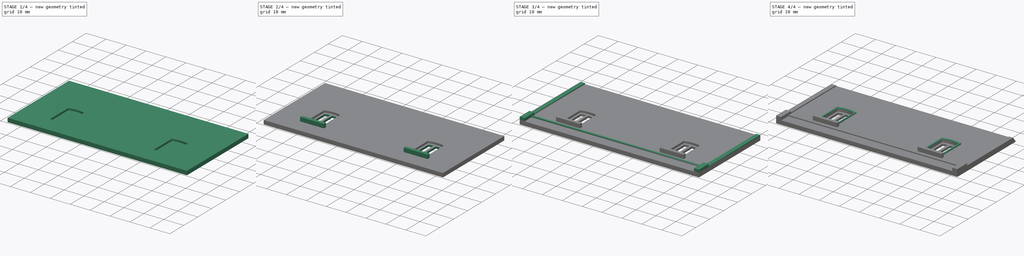
[diagram: build sequence overview — one tinted view per stage of 4, left to right]
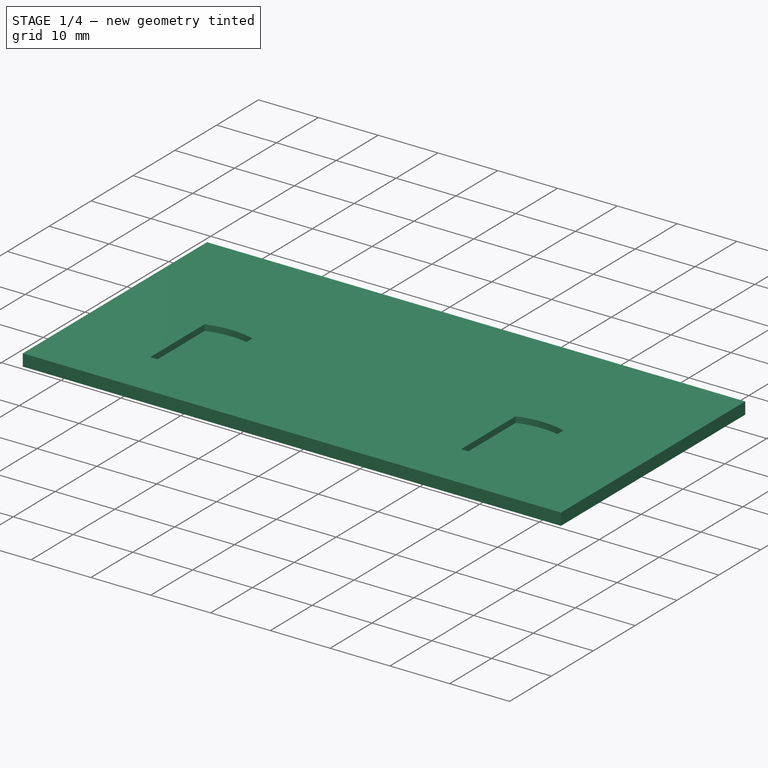
[diagram: stage 1 of 4 — iso view after this stage's code; geometry added in this stage tinted green]
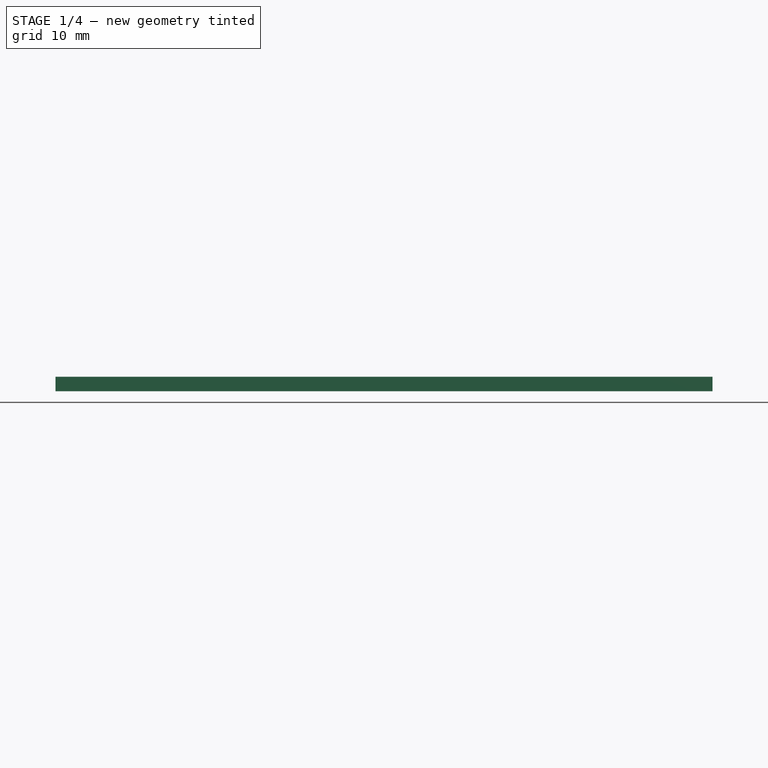
[diagram: stage 1 of 4 — front view after this stage's code; geometry added in this stage tinted green]
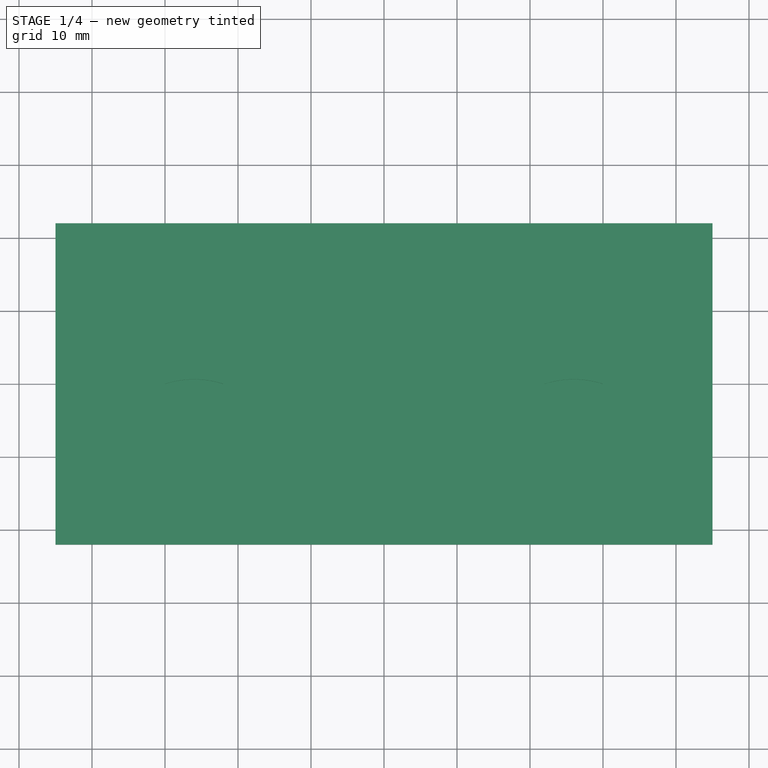
[diagram: stage 1 of 4 — top view after this stage's code; geometry added in this stage tinted green]
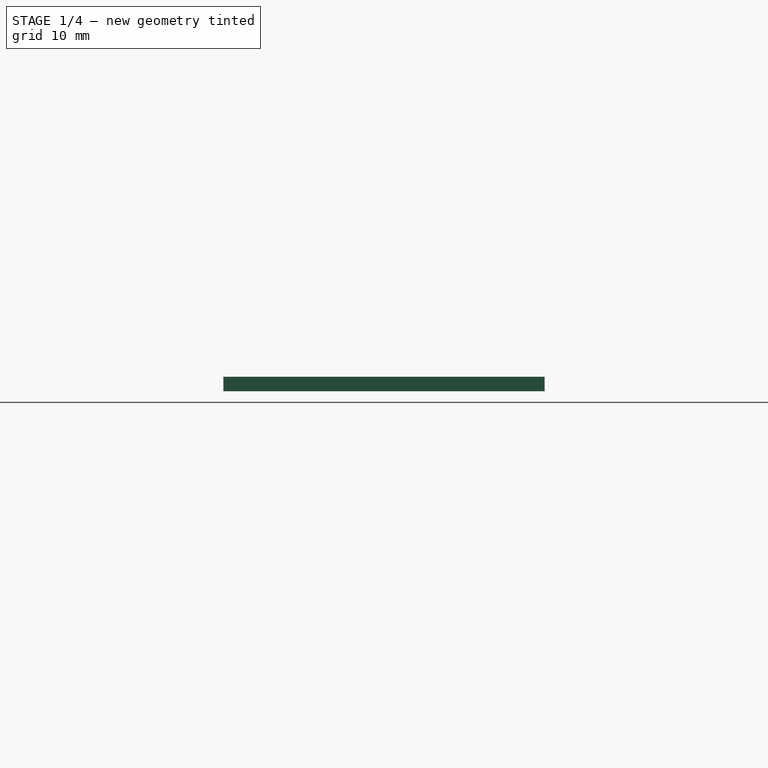
[diagram: stage 1 of 4 — right view after this stage's code; geometry added in this stage tinted green]
FCSTD DOCUMENT  (FreeCAD 0.16R6698 (Git))
Label: 3_1_Face_Cote
License: All rights reserved
LicenseURL: http://en.wikipedia.org/wiki/All_rights_reserved
objects: Sketcher::SketchObject×9, PartDesign::Pad×6, PartDesign::Pocket×3
note: 27 computed .brp shape members not serialized (recipe doc carries the construction recipe); baked Part::Feature solids carry a one-line shape summary decoded from their .brp

FEATURE [Sketcher::SketchObject] Sketch
  sketch-geometry (4):
    g0: LineSegment StartX=-45 StartY=22 StartZ=0 EndX=45 EndY=22 EndZ=0
    g1: LineSegment StartX=45 StartY=22 StartZ=0 EndX=45 EndY=-22 EndZ=0
    g2: LineSegment StartX=45 StartY=-22 StartZ=0 EndX=-45 EndY=-22 EndZ=0
    g3: LineSegment StartX=-45 StartY=-22 StartZ=0 EndX=-45 EndY=22 EndZ=0
  constraints (12):
    c: Coincident(g0,g1)
    c: Coincident(g1,g2)
    c: Coincident(g2,g3)
    c: Coincident(g3,g0)
    c: Horizontal(g0)
    c: Horizontal(g2)
    c: Vertical(g1)
    c: Vertical(g3)
    c: Symmetric(g2,g0,g-1)
    c: DistanceY(g2,g0) = 44
    c: Symmetric(g0,g0,g-2)
    c: DistanceX(g0,g0) = 90
FEATURE [PartDesign::Pad] Pad
  Length = 2
  Length2 = 100
  Sketch = -> Sketch
  Type = 0
FEATURE [Sketcher::SketchObject] Sketch001
  Placement = pos=(0,0,2) rot=(0,0,1;0rad)
  Support = -> Pad [Face6]
  sketch-geometry (8):
    g0: LineSegment StartX=-30 StartY=0 StartZ=0 EndX=-30 EndY=-13 EndZ=0
    g1: LineSegment StartX=-30 StartY=-13 StartZ=0 EndX=-22 EndY=-13 EndZ=0
    g2: LineSegment StartX=-22 StartY=-13 StartZ=0 EndX=-22 EndY=0 EndZ=0
    g3: ArcOfCircle CenterX=-26 CenterY=-12.3693 CenterZ=0 NormalX=0 NormalY=0 NormalZ=1 Radius=13 StartAngle=1.25803 EndAngle=1.88356
    g4: LineSegment StartX=22 StartY=0 StartZ=0 EndX=22 EndY=-13 EndZ=0
    g5: LineSegment StartX=22 StartY=-13 StartZ=0 EndX=30 EndY=-13 EndZ=0
    g6: LineSegment StartX=30 StartY=-13 StartZ=0 EndX=30 EndY=0 EndZ=0
    g7: ArcOfCircle CenterX=26 CenterY=-12.3693 CenterZ=0 NormalX=0 NormalY=0 NormalZ=1 Radius=13 StartAngle=1.25803 EndAngle=1.88356
  constraints (25):
    c: Vertical(g0)
    c: Coincident(g0,g1)
    c: Horizontal(g1)
    c: Coincident(g1,g2)
    c: Vertical(g2)
    c: Coincident(g3,g0)
    c: Coincident(g3,g2)
    c: Radius(g3) = 13
    c: DistanceY(g0,g0) = 13
    c: DistanceX(g0,g1) = 8
    c: DistanceX(g0,g-1) = 30
    c: PointOnObject(g0,g-1)
    c: PointOnObject(g2,g-1)
    c: Vertical(g4)
    c: Coincident(g4,g5)
    c: Horizontal(g5)
    c: Coincident(g5,g6)
    c: Vertical(g6)
    c: Coincident(g7,g4)
    c: Coincident(g7,g6)
    c: Equal(g3,g7)
    c: Symmetric(g0,g5,g-2)
    c: Symmetric(g4,g1,g-2)
    c: PointOnObject(g4,g-1)
    c: PointOnObject(g6,g-1)
FEATURE [PartDesign::Pocket] Pocket
  Length = 1
  Sketch = -> Sketch001
  Type = 0
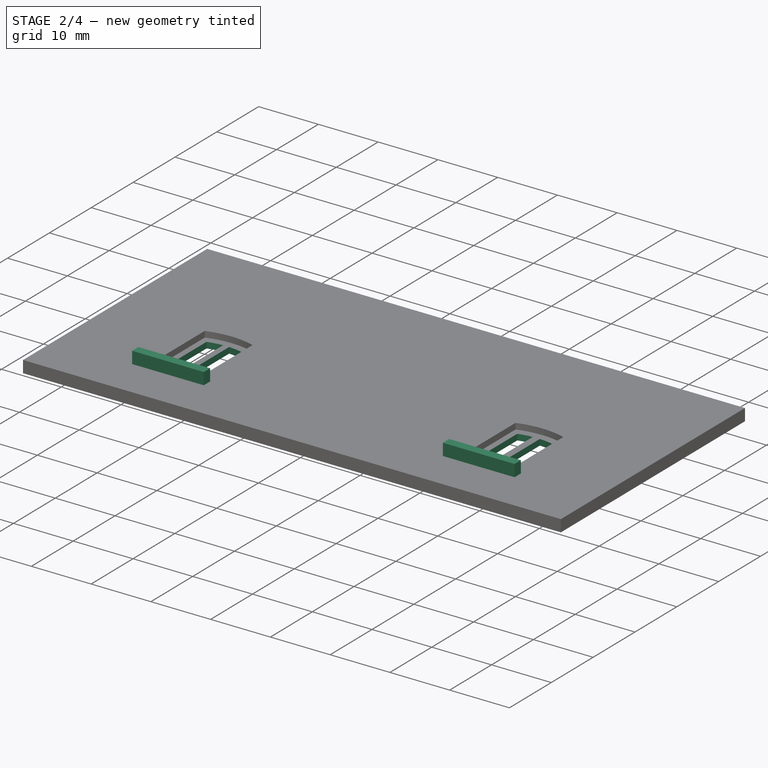
[diagram: stage 2 of 4 — iso view after this stage's code; geometry added in this stage tinted green]
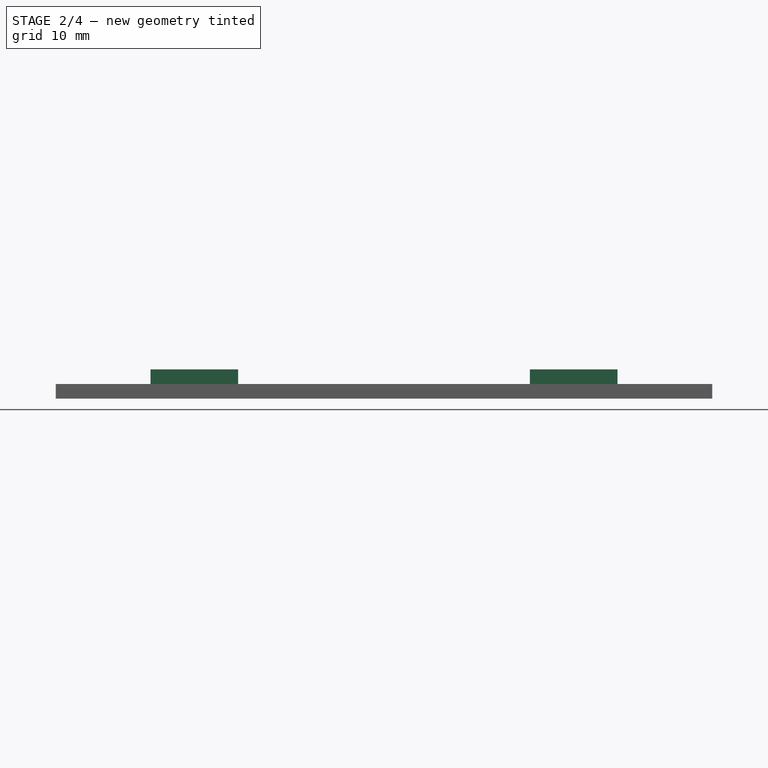
[diagram: stage 2 of 4 — front view after this stage's code; geometry added in this stage tinted green]
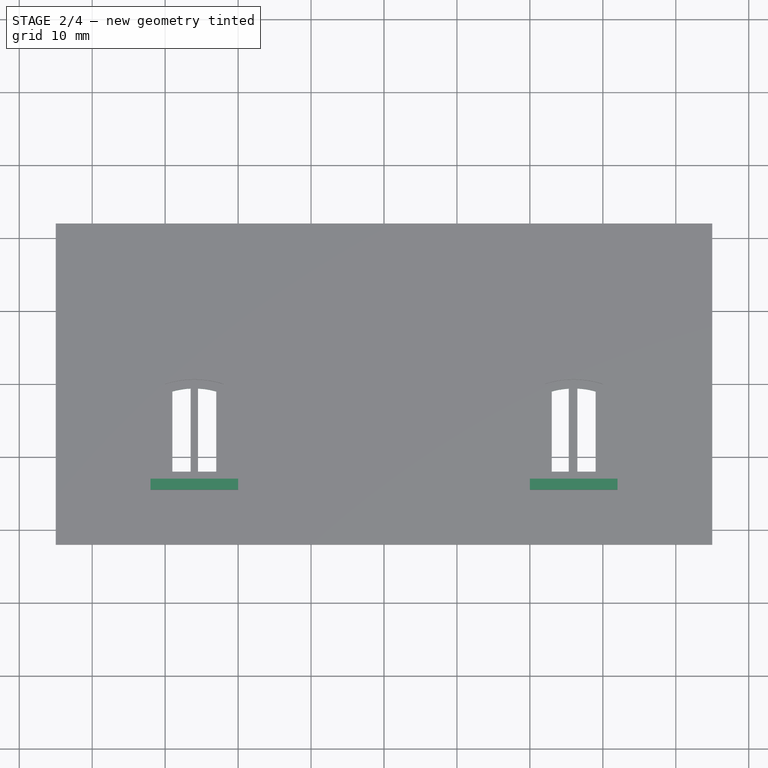
[diagram: stage 2 of 4 — top view after this stage's code; geometry added in this stage tinted green]
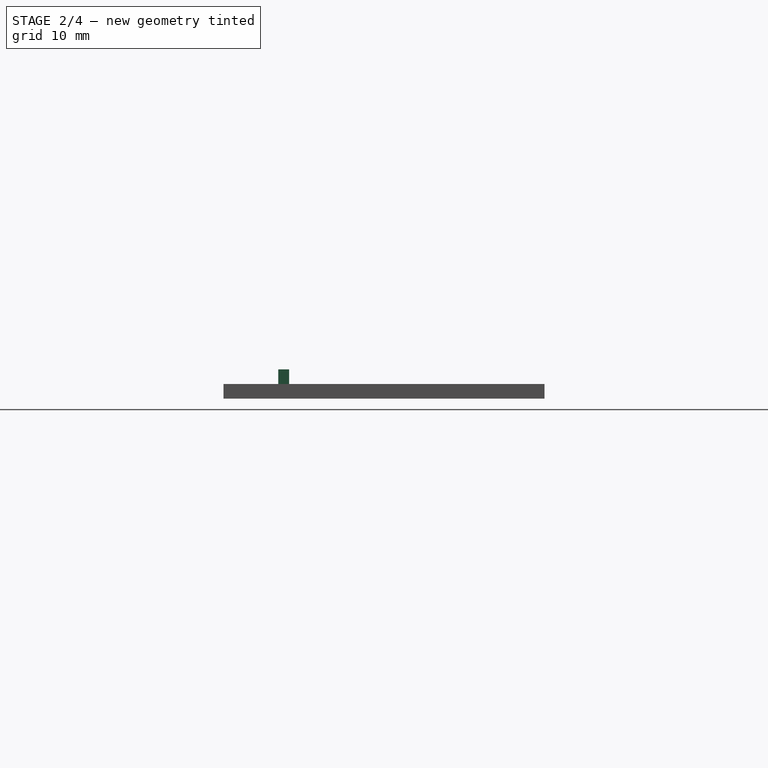
[diagram: stage 2 of 4 — right view after this stage's code; geometry added in this stage tinted green]
FEATURE [Sketcher::SketchObject] Sketch002
  Placement = pos=(0,0,1) rot=(0,0,1;0rad)
  Support = -> Pocket [Face15]
  sketch-geometry (16):
    g0: LineSegment StartX=-29 StartY=-1 StartZ=0 EndX=-29 EndY=-12 EndZ=0
    g1: LineSegment StartX=-23 StartY=-12.0009 StartZ=0 EndX=-23 EndY=-1.00092 EndZ=0
    g2: LineSegment StartX=23 StartY=-1.00092 StartZ=0 EndX=23 EndY=-12.0009 EndZ=0
    g3: LineSegment StartX=29 StartY=-12 StartZ=0 EndX=29 EndY=-1 EndZ=0
    g4: LineSegment StartX=-26.5 StartY=-0.594375 StartZ=0 EndX=-26.5 EndY=-12 EndZ=0
    g5: LineSegment StartX=-25.5 StartY=-0.595257 StartZ=0 EndX=-25.5 EndY=-12.0009 EndZ=0
    g6: LineSegment StartX=-29 StartY=-12 StartZ=0 EndX=-26.5 EndY=-12 EndZ=0
    g7: LineSegment StartX=-25.5 StartY=-12.0009 StartZ=0 EndX=-23 EndY=-12.0009 EndZ=0
    g8: ArcOfCircle CenterX=-26 CenterY=-11.583 CenterZ=0 NormalX=0 NormalY=0 NormalZ=1 Radius=11 StartAngle=1.61627 EndAngle=1.84702
    g9: ArcOfCircle CenterX=-26 CenterY=-11.583 CenterZ=0 NormalX=0 NormalY=0 NormalZ=1 Radius=10.9991 StartAngle=1.29455 EndAngle=1.52532
    g10: LineSegment StartX=25.3186 StartY=-0.605014 StartZ=0 EndX=25.3186 EndY=-12.0009 EndZ=0
    g11: LineSegment StartX=25.3186 StartY=-12.0009 StartZ=0 EndX=23 EndY=-12.0009 EndZ=0
    g12: LineSegment StartX=26.5 StartY=-0.594375 StartZ=0 EndX=26.5 EndY=-12 EndZ=0
    g13: LineSegment StartX=26.5 StartY=-12 StartZ=0 EndX=29 EndY=-12 EndZ=0
    g14: ArcOfCircle CenterX=26 CenterY=-11.583 CenterZ=0 NormalX=0 NormalY=0 NormalZ=1 Radius=10.9991 StartAngle=1.63279 EndAngle=1.84705
    g15: ArcOfCircle CenterX=26 CenterY=-11.583 CenterZ=0 NormalX=0 NormalY=0 NormalZ=1 Radius=11 StartAngle=1.29457 EndAngle=1.52533
  constraints (45):
    c: Vertical(g0)
    c: Vertical(g1)
    c: Vertical(g2)
    c: Vertical(g3)
    c: DistanceX(g0,g-1) = 29
    c: DistanceY(g0,g0) = 11
    c: Equal(g0,g1)
    c: DistanceY(g0,g-1) = 12
    c: DistanceX(g0,g1) = 6
    c: Symmetric(g1,g2,g-2)
    c: Symmetric(g0,g3,g-2)
    c: Symmetric(g0,g3,g-2)
    c: Symmetric(g1,g2,g-2)
    c: Vertical(g4)
    c: Vertical(g5)
    c: Coincident(g6,g0)
    c: Horizontal(g6)
    c: Coincident(g7,g1)
    c: Horizontal(g7)
    c: Coincident(g5,g7)
    c: Coincident(g4,g6)
    c: DistanceX(g4,g5) = 1
    c: DistanceX(g0,g4) = 2.5
    c: Coincident(g8,g0)
    c: Radius(g8) = 11
    c: Coincident(g4,g8)
    c: DistanceX(g4,g8) = 0.5
    c: Coincident(g9,g8)
    c: Coincident(g9,g5)
    c: Coincident(g9,g1)
    c: Vertical(g10)
    c: Coincident(g10,g11)
    c: Coincident(g11,g2)
    c: Horizontal(g11)
    c: Vertical(g12)
    c: Coincident(g12,g13)
    c: Horizontal(g13)
    c: Coincident(g13,g3)
    c: Coincident(g14,g2)
    c: Coincident(g14,g10)
    c: Coincident(g15,g14)
    c: Coincident(g15,g12)
    c: Coincident(g15,g3)
    c: Symmetric(g8,g14,g-2)
    c: Symmetric(g4,g12,g-2)
FEATURE [PartDesign::Pocket] Pocket001
  Length = 5
  Sketch = -> Sketch002
  Type = 0
FEATURE [Sketcher::SketchObject] Sketch003
  Placement = pos=(0,0,2) rot=(0,0,1;0rad)
  Support = -> Pocket001 [Face5]
  sketch-geometry (8):
    g0: LineSegment StartX=-32 StartY=-13 StartZ=0 EndX=-20 EndY=-13 EndZ=0
    g1: LineSegment StartX=-20 StartY=-13 StartZ=0 EndX=-20 EndY=-14.5 EndZ=0
    g2: LineSegment StartX=-20 StartY=-14.5 StartZ=0 EndX=-32 EndY=-14.5 EndZ=0
    g3: LineSegment StartX=-32 StartY=-14.5 StartZ=0 EndX=-32 EndY=-13 EndZ=0
    g4: LineSegment StartX=20 StartY=-13 StartZ=0 EndX=32 EndY=-13 EndZ=0
    g5: LineSegment StartX=32 StartY=-13 StartZ=0 EndX=32 EndY=-14.5 EndZ=0
    g6: LineSegment StartX=32 StartY=-14.5 StartZ=0 EndX=20 EndY=-14.5 EndZ=0
    g7: LineSegment StartX=20 StartY=-14.5 StartZ=0 EndX=20 EndY=-13 EndZ=0
  constraints (23):
    c: Coincident(g0,g1)
    c: Coincident(g1,g2)
    c: Coincident(g2,g3)
    c: Coincident(g3,g0)
    c: Horizontal(g0)
    c: Horizontal(g2)
    c: Vertical(g1)
    c: Vertical(g3)
    c: Coincident(g4,g5)
    c: Coincident(g5,g6)
    c: Coincident(g6,g7)
    c: Coincident(g7,g4)
    c: Horizontal(g4)
    c: Horizontal(g6)
    c: Vertical(g5)
    c: Vertical(g7)
    c: Equal(g1,g7)
    c: Equal(g2,g6)
    c: Symmetric(g0,g4,g-2)
    c: DistanceX(g2,g1) = 12
    c: DistanceY(g-1,g0) = -13
    c: DistanceX(g-1,g0) = -20
    c: DistanceY(g2,g0) = 1.5
FEATURE [PartDesign::Pad] Pad001  label="Appuis-Fenetres"
  Length = 2
  Length2 = 100
  Sketch = -> Sketch003
  Type = 0
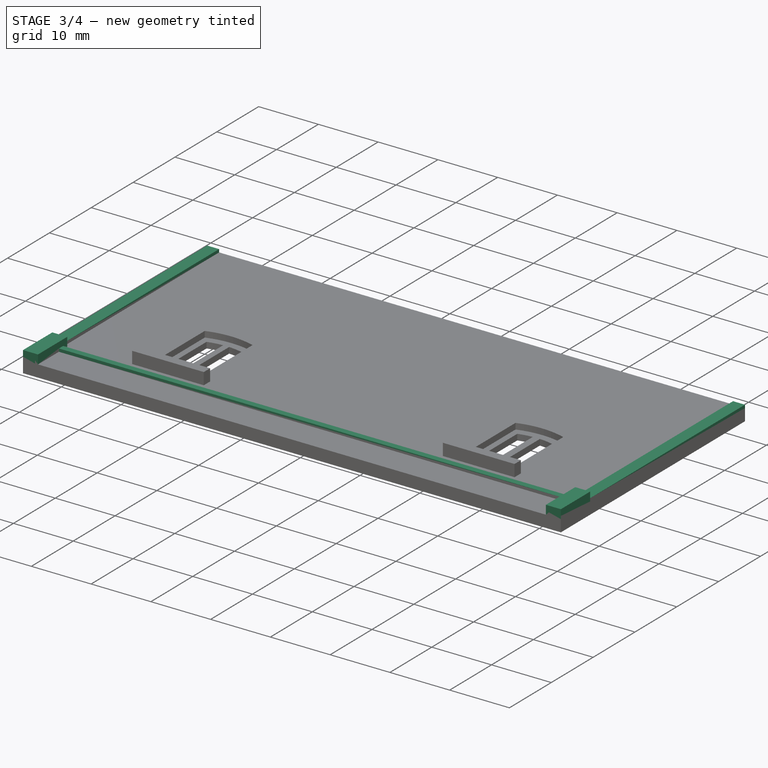
[diagram: stage 3 of 4 — iso view after this stage's code; geometry added in this stage tinted green]
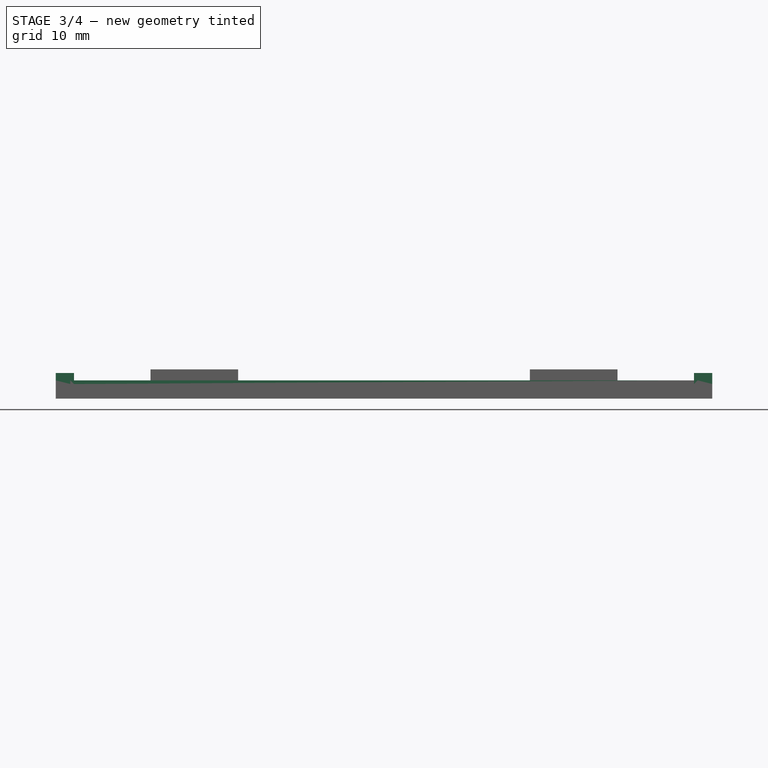
[diagram: stage 3 of 4 — front view after this stage's code; geometry added in this stage tinted green]
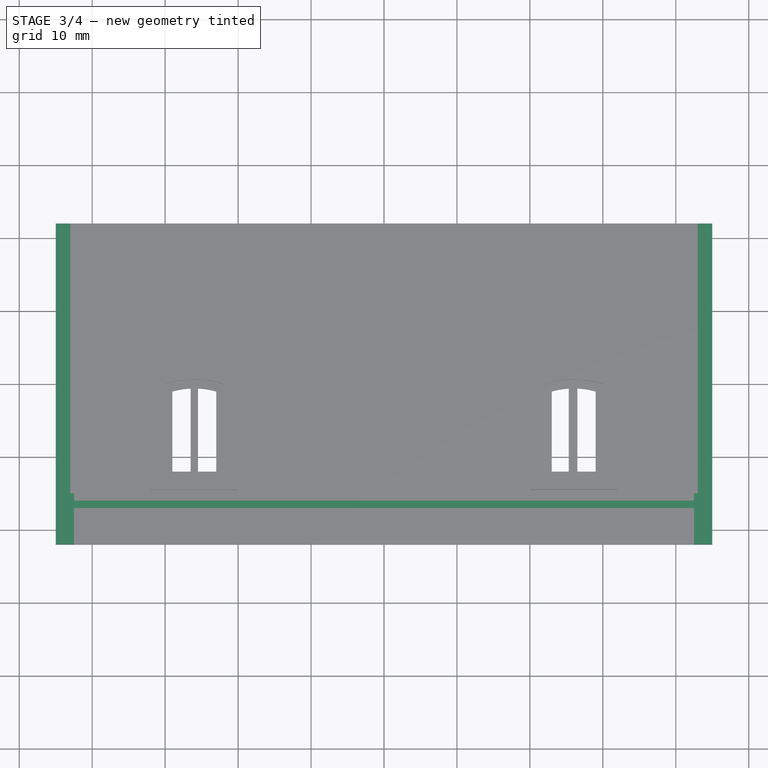
[diagram: stage 3 of 4 — top view after this stage's code; geometry added in this stage tinted green]
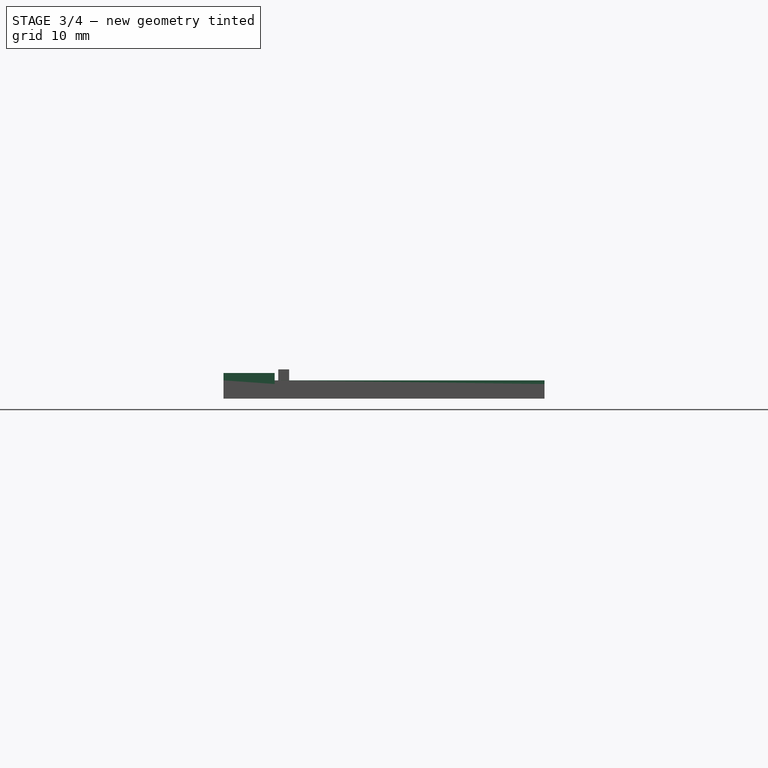
[diagram: stage 3 of 4 — right view after this stage's code; geometry added in this stage tinted green]
FEATURE [Sketcher::SketchObject] Sketch004
  Placement = pos=(0,0,0) rot=(1,0,0;3.14159rad)
  Support = -> Pad001 [Face4]
  sketch-geometry (8):
    g0: LineSegment StartX=-45 StartY=22 StartZ=0 EndX=-43 EndY=22 EndZ=0
    g1: LineSegment StartX=-43 StartY=22 StartZ=0 EndX=-43 EndY=-22 EndZ=0
    g2: LineSegment StartX=-43 StartY=-22 StartZ=0 EndX=-45 EndY=-22 EndZ=0
    g3: LineSegment StartX=-45 StartY=-22 StartZ=0 EndX=-45 EndY=22 EndZ=0
    g4: LineSegment StartX=43 StartY=22 StartZ=0 EndX=45 EndY=22 EndZ=0
    g5: LineSegment StartX=45 StartY=22 StartZ=0 EndX=45 EndY=-22 EndZ=0
    g6: LineSegment StartX=45 StartY=-22 StartZ=0 EndX=43 EndY=-22 EndZ=0
    g7: LineSegment StartX=43 StartY=-22 StartZ=0 EndX=43 EndY=22 EndZ=0
  constraints (22):
    c: Coincident(g0,g1)
    c: Coincident(g1,g2)
    c: Coincident(g2,g3)
    c: Coincident(g3,g0)
    c: Horizontal(g0)
    c: Horizontal(g2)
    c: Vertical(g1)
    c: Vertical(g3)
    c: DistanceX(g0,g0) = 2
    c: DistanceY(g-1,g0) = 22
    c: DistanceX(g0,g-1) = 43
    c: Symmetric(g0,g1,g-1)
    c: Coincident(g4,g5)
    c: Coincident(g5,g6)
    c: Coincident(g6,g7)
    c: Coincident(g7,g4)
    c: Horizontal(g4)
    c: Horizontal(g6)
    c: Vertical(g5)
    c: Vertical(g7)
    c: Symmetric(g0,g4,g-2)
    c: Symmetric(g1,g6,g-2)
FEATURE [PartDesign::Pad] Pad002  label="Coins-Briques"
  Length = 2.5
  Length2 = 100
  Reversed = true
  Sketch = -> Sketch004
  Type = 0
FEATURE [Sketcher::SketchObject] Sketch005
  Placement = pos=(0,0,0) rot=(1,0,0;3.14159rad)
  Support = -> Pad002 [Face4]
  sketch-geometry (8):
    g0: LineSegment StartX=-45 StartY=22 StartZ=0 EndX=-42.5 EndY=22 EndZ=0
    g1: LineSegment StartX=-42.5 StartY=22 StartZ=0 EndX=-42.5 EndY=15 EndZ=0
    g2: LineSegment StartX=-42.5 StartY=15 StartZ=0 EndX=-45 EndY=15 EndZ=0
    g3: LineSegment StartX=-45 StartY=15 StartZ=0 EndX=-45 EndY=22 EndZ=0
    g4: LineSegment StartX=42.5 StartY=22 StartZ=0 EndX=45 EndY=22 EndZ=0
    g5: LineSegment StartX=45 StartY=22 StartZ=0 EndX=45 EndY=15 EndZ=0
    g6: LineSegment StartX=45 StartY=15 StartZ=0 EndX=42.5 EndY=15 EndZ=0
    g7: LineSegment StartX=42.5 StartY=15 StartZ=0 EndX=42.5 EndY=22 EndZ=0
  constraints (22):
    c: Coincident(g0,g1)
    c: Coincident(g1,g2)
    c: Coincident(g2,g3)
    c: Coincident(g3,g0)
    c: Horizontal(g0)
    c: Horizontal(g2)
    c: Vertical(g1)
    c: Vertical(g3)
    c: Coincident(g4,g5)
    c: Coincident(g5,g6)
    c: Coincident(g6,g7)
    c: Coincident(g7,g4)
    c: Horizontal(g4)
    c: Horizontal(g6)
    c: Vertical(g5)
    c: Vertical(g7)
    c: DistanceX(g0,g0) = 2.5
    c: DistanceY(g2,g0) = 7
    c: DistanceY(g-1,g0) = 22
    c: DistanceX(g0,g-1) = 42.5
    c: Symmetric(g0,g4,g-2)
    c: Symmetric(g2,g5,g-2)
FEATURE [PartDesign::Pad] Pad003  label="Pieds-Coins"
  Length = 3.5
  Length2 = 100
  Reversed = true
  Sketch = -> Sketch005
  Type = 0
FEATURE [Sketcher::SketchObject] Sketch006
  Placement = pos=(0,0,2) rot=(0,0,1;0rad)
  Support = -> Pad003 [Face29]
  sketch-geometry (4):
    g0: LineSegment StartX=-42.5 StartY=-16 StartZ=0 EndX=42.5 EndY=-16 EndZ=0
    g1: LineSegment StartX=42.5 StartY=-16 StartZ=0 EndX=42.5 EndY=-17 EndZ=0
    g2: LineSegment StartX=42.5 StartY=-17 StartZ=0 EndX=-42.5 EndY=-17 EndZ=0
    g3: LineSegment StartX=-42.5 StartY=-17 StartZ=0 EndX=-42.5 EndY=-16 EndZ=0
  constraints (12):
    c: Coincident(g0,g1)
    c: Coincident(g1,g2)
    c: Coincident(g2,g3)
    c: Coincident(g3,g0)
    c: Horizontal(g0)
    c: Horizontal(g2)
    c: Vertical(g1)
    c: Vertical(g3)
    c: DistanceY(g2,g0) = 1
    c: DistanceX(g0,g-1) = 42.5
    c: DistanceY(g0,g-1) = 16
    c: Symmetric(g0,g0,g-2)
FEATURE [PartDesign::Pad] Pad004  label="Parement-Briques"
  Length = 0.5
  Length2 = 100
  Sketch = -> Sketch006
  Type = 0
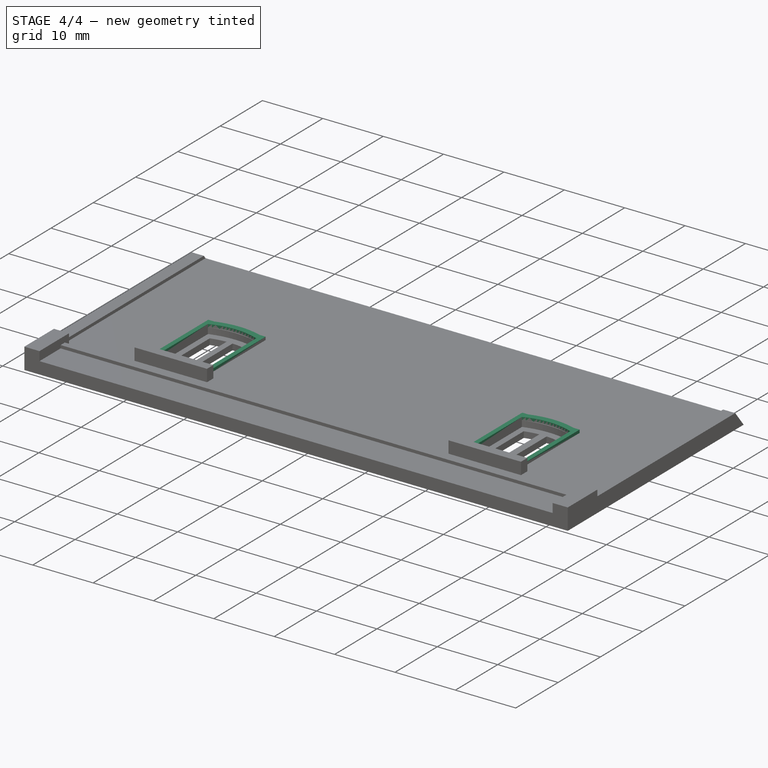
[diagram: stage 4 of 4 — iso view after this stage's code; geometry added in this stage tinted green]
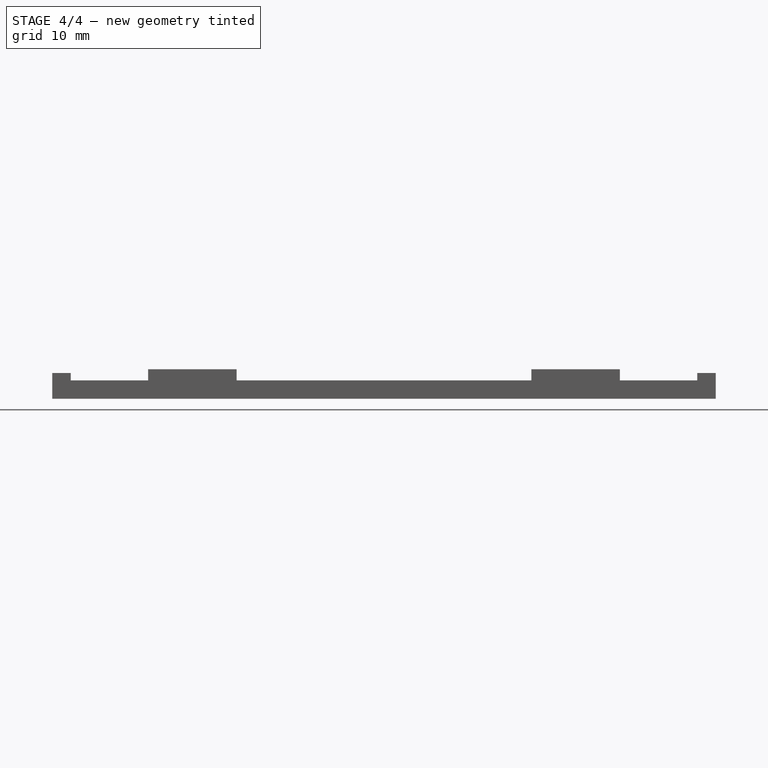
[diagram: stage 4 of 4 — front view after this stage's code; geometry added in this stage tinted green]
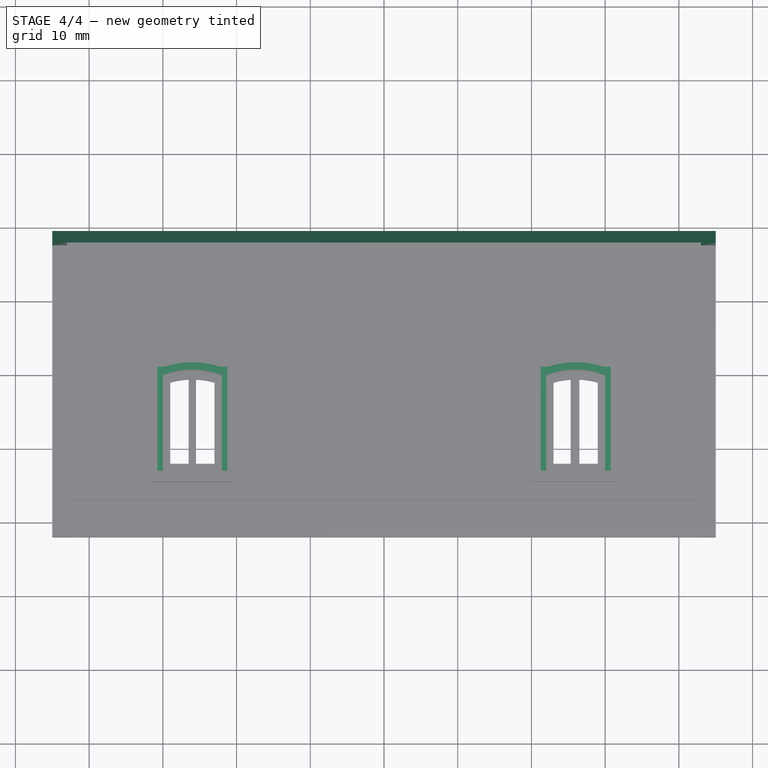
[diagram: stage 4 of 4 — top view after this stage's code; geometry added in this stage tinted green]
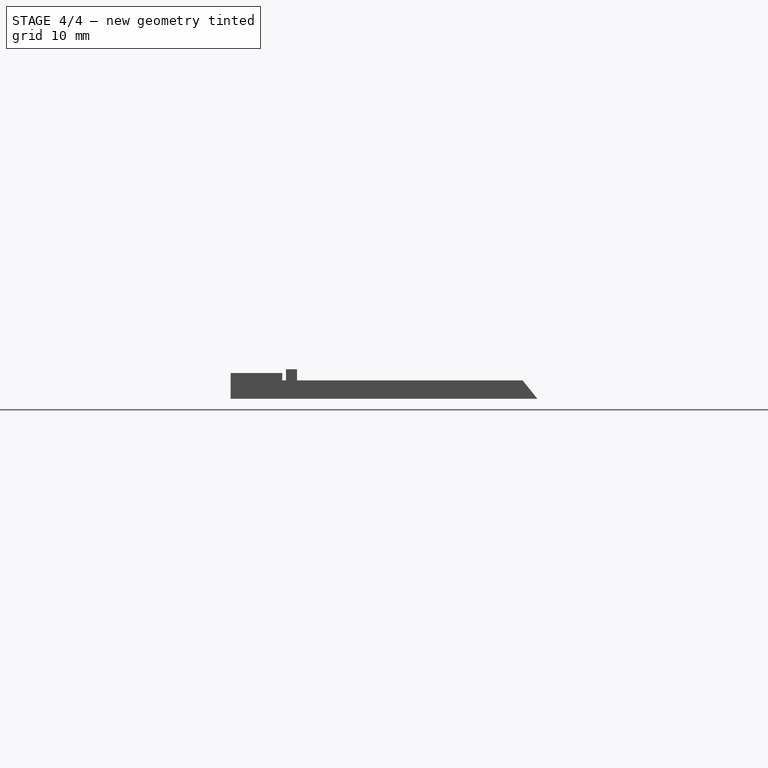
[diagram: stage 4 of 4 — right view after this stage's code; geometry added in this stage tinted green]
FEATURE [Sketcher::SketchObject] Sketch007
  Placement = pos=(0,0,2) rot=(0,0,1;0rad)
  Support = -> Pad004 [Face29]
  sketch-geometry (20):
    g0: LineSegment StartX=-30.75 StartY=-13 StartZ=0 EndX=-30.75 EndY=1.15206 EndZ=0
    g1: LineSegment StartX=-30.75 StartY=1.15206 StartZ=0 EndX=-29.75 EndY=1.15206 EndZ=0
    g2: LineSegment StartX=-22.25 StartY=1.15206 StartZ=0 EndX=-21.25 EndY=1.15206 EndZ=0
    g3: LineSegment StartX=-21.25 StartY=1.15206 StartZ=0 EndX=-21.25 EndY=-13 EndZ=0
    g4: LineSegment StartX=-21.25 StartY=-13 StartZ=0 EndX=-22 EndY=-13 EndZ=0
    g5: LineSegment StartX=-22 StartY=-13 StartZ=0 EndX=-22 EndY=1e-12 EndZ=0
    g6: LineSegment StartX=-30 StartY=-13 StartZ=0 EndX=-30 EndY=0 EndZ=0
    g7: LineSegment StartX=-30 StartY=-13 StartZ=0 EndX=-30.75 EndY=-13 EndZ=0
    g8: ArcOfCircle CenterX=-26 CenterY=-10.247 CenterZ=0 NormalX=0 NormalY=0 NormalZ=1 Radius=11 StartAngle=1.19863 EndAngle=1.94296
    g9: ArcOfCircle CenterX=-26 CenterY=-10.247 CenterZ=0 NormalX=0 NormalY=0 NormalZ=1 Radius=12 StartAngle=1.25297 EndAngle=1.88862
    g10: LineSegment StartX=21.25 StartY=1.15206 StartZ=0 EndX=21.25 EndY=-13 EndZ=0
    g11: LineSegment StartX=21.25 StartY=-13 StartZ=0 EndX=22 EndY=-13 EndZ=0
    g12: LineSegment StartX=22 StartY=-13 StartZ=0 EndX=22 EndY=0 EndZ=0
    g13: LineSegment StartX=30 StartY=1e-12 StartZ=0 EndX=30 EndY=-13 EndZ=0
    g14: LineSegment StartX=30 StartY=-13 StartZ=0 EndX=30.75 EndY=-13 EndZ=0
    g15: LineSegment StartX=30.75 StartY=-13 StartZ=0 EndX=30.75 EndY=1.15206 EndZ=0
    g16: LineSegment StartX=30.75 StartY=1.15206 StartZ=0 EndX=29.75 EndY=1.15206 EndZ=0
    g17: LineSegment StartX=21.25 StartY=1.15206 StartZ=0 EndX=22.25 EndY=1.15206 EndZ=0
    g18: ArcOfCircle CenterX=26 CenterY=-10.247 CenterZ=0 NormalX=0 NormalY=0 NormalZ=1 Radius=11 StartAngle=1.19863 EndAngle=1.94296
    g19: ArcOfCircle CenterX=26 CenterY=-10.247 CenterZ=0 NormalX=0 NormalY=0 NormalZ=1 Radius=12 StartAngle=1.25297 EndAngle=1.88862
  constraints (61):
    c: Vertical(g0)
    c: Coincident(g1,g0)
    c: Horizontal(g1)
    c: Horizontal(g2)
    c: Coincident(g3,g2)
    c: Vertical(g3)
    c: Coincident(g4,g3)
    c: Horizontal(g4)
    c: Coincident(g5,g4)
    c: Vertical(g5)
    c: Vertical(g6)
    c: Coincident(g7,g6)
    c: Coincident(g7,g0)
    c: Horizontal(g7)
    c: Coincident(g8,g6)
    c: Coincident(g8,g5)
    c: Coincident(g9,g8)
    c: Coincident(g9,g1)
    c: Coincident(g9,g2)
    c: DistanceY(g3,g-1) = 13
    c: DistanceX(g6,g4) = 8
    c: DistanceX(g4,g-1) = 22
    c: Equal(g7,g4)
    c: DistanceX(g4,g3) = 0.75
    c: DistanceX(g8,g4) = 4
    c: Radius(g8) = 11
    c: Radius(g9) = 12
    c: PointOnObject(g6,g-1)
    c: Equal(g5,g6)
    c: Equal(g2,g1)
    c: DistanceX(g2,g2) = 1
    c: Vertical(g10)
    c: Coincident(g10,g11)
    c: Coincident(g11,g12)
    c: Vertical(g12)
    c: Vertical(g13)
    c: Coincident(g13,g14)
    c: Horizontal(g14)
    c: Coincident(g14,g15)
    c: Vertical(g15)
    c: Coincident(g15,g16)
    c: Horizontal(g16)
    c: Coincident(g17,g10)
    c: Horizontal(g17)
    c: Coincident(g18,g12)
    c: Coincident(g18,g13)
    c: Coincident(g19,g18)
    c: Coincident(g19,g17)
    c: Coincident(g19,g16)
    c: Symmetric(g8,g18,g-2)
    c: Symmetric(g4,g11,g-2)
    c: Horizontal(g11)
    c: Symmetric(g6,g13,g-2)
    c: Equal(g8,g18)
    c: Equal(g9,g19)
    c: Equal(g2,g17)
    c: Equal(g17,g16)
    c: Symmetric(g0,g15,g-2)
    c: Equal(g7,g4)
    c: Equal(g4,g11)
    c: Equal(g11,g14)
FEATURE [PartDesign::Pad] Pad005  label="Parement-Fenetres"
  Length = 0.5
  Length2 = 100
  Sketch = -> Sketch007
  Type = 0
FEATURE [Sketcher::SketchObject] Sketch008
  Placement = pos=(-45,0,0) rot=(0.57735,-0.57735,-0.57735;2.0944rad)
  Support = -> Pad005 [Face42]
  sketch-geometry (4):
    g0: LineSegment StartX=-25.2099 StartY=17.9877 StartZ=0 EndX=-5.20987 EndY=17.9877 EndZ=0
    g1: LineSegment StartX=-5.20987 StartY=17.9877 StartZ=0 EndX=-25.2099 EndY=-7.01234 EndZ=0
    g2: LineSegment StartX=-25.2099 StartY=-7.01234 StartZ=0 EndX=-25.2099 EndY=17.9877 EndZ=0
    g3: GeomPoint [constr] X=-18 Y=2 Z=0
  constraints (10):
    c: Horizontal(g0)
    c: Coincident(g0,g1)
    c: Coincident(g1,g2)
    c: Coincident(g2,g0)
    c: Vertical(g2)
    c: DistanceX(g0,g0) = 20
    c: DistanceY(g1,g0) = 25
    c: DistanceX(g3,g-1) = 18
    c: DistanceY(g-1,g3) = 2
    c: PointOnObject(g3,g1)
FEATURE [PartDesign::Pocket] Pocket002  label="Biseau-Toiture"
  Length = 5
  Sketch = -> Sketch008
  Type = 1
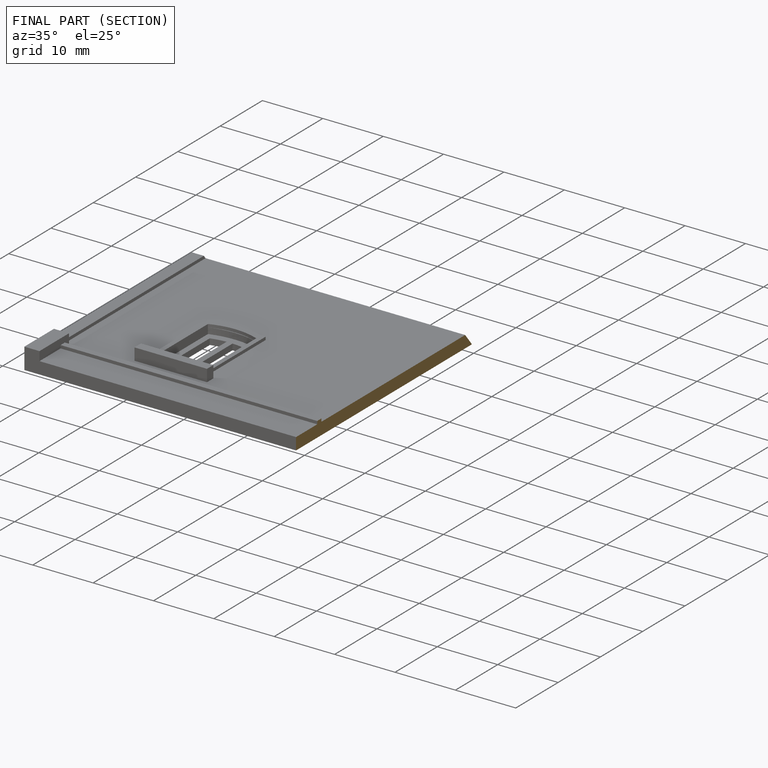
[diagram: finished part — half-section view (interior)]
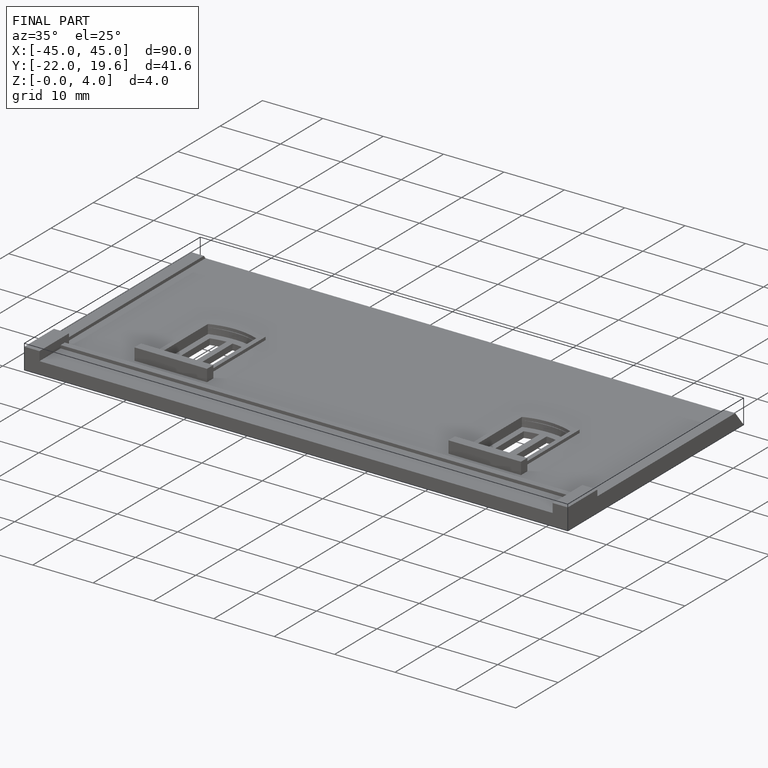
[diagram: finished part — iso view with bounding-box wireframe]
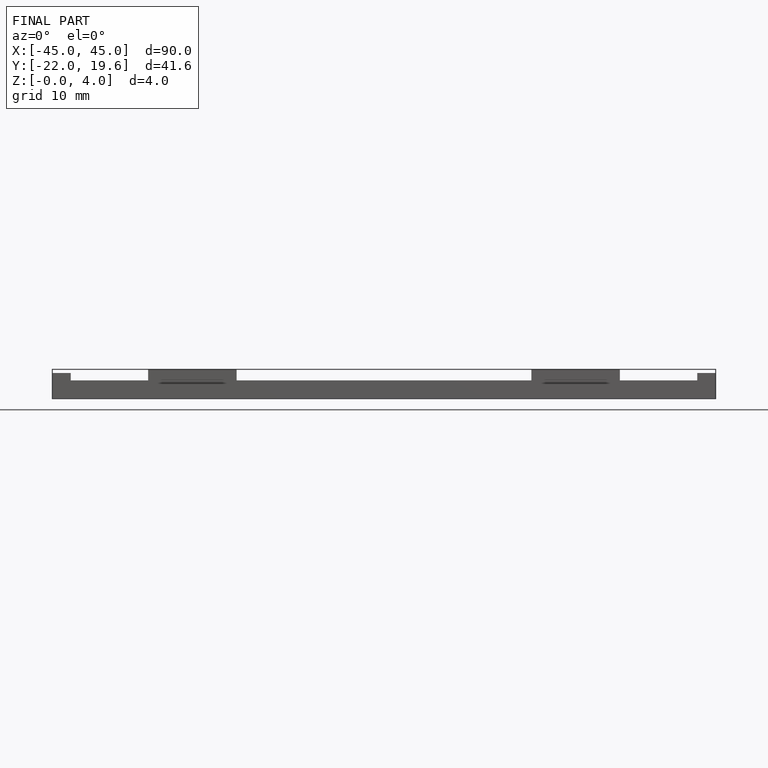
[diagram: finished part — front view with bounding-box wireframe]
